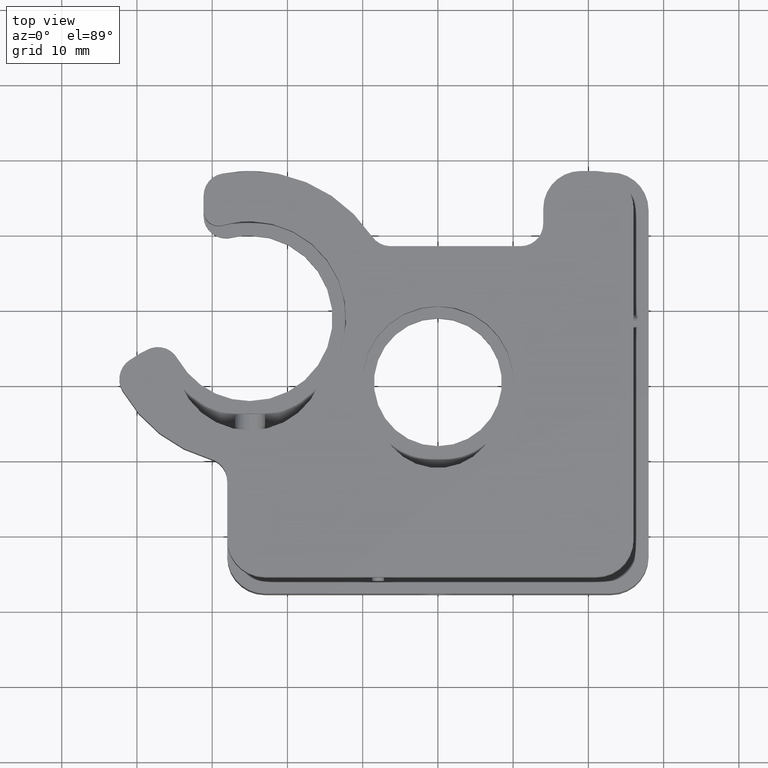
[diagram: clean part render]
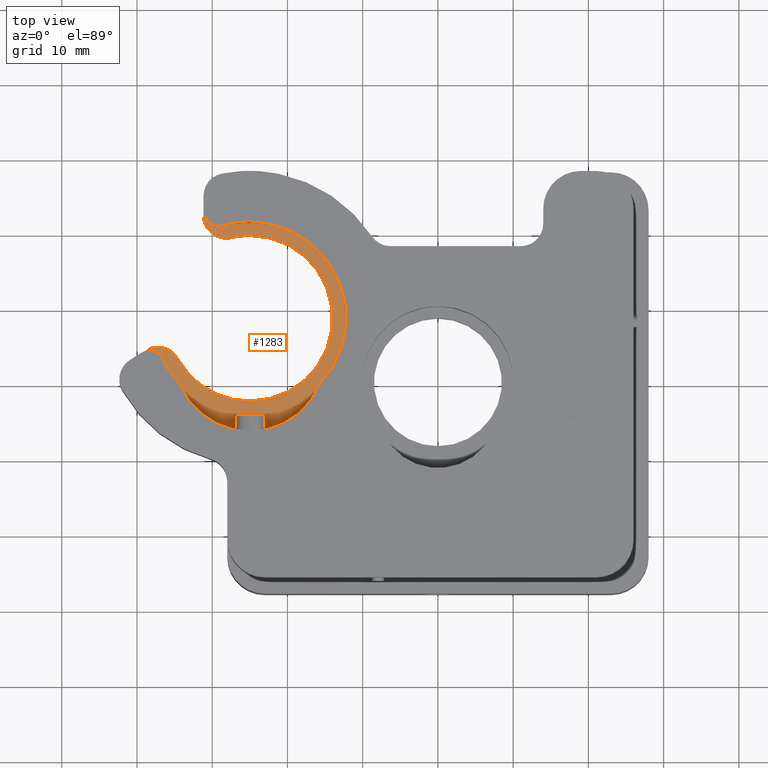
[diagram: same view with one face highlighted and labeled with its STEP entity id]
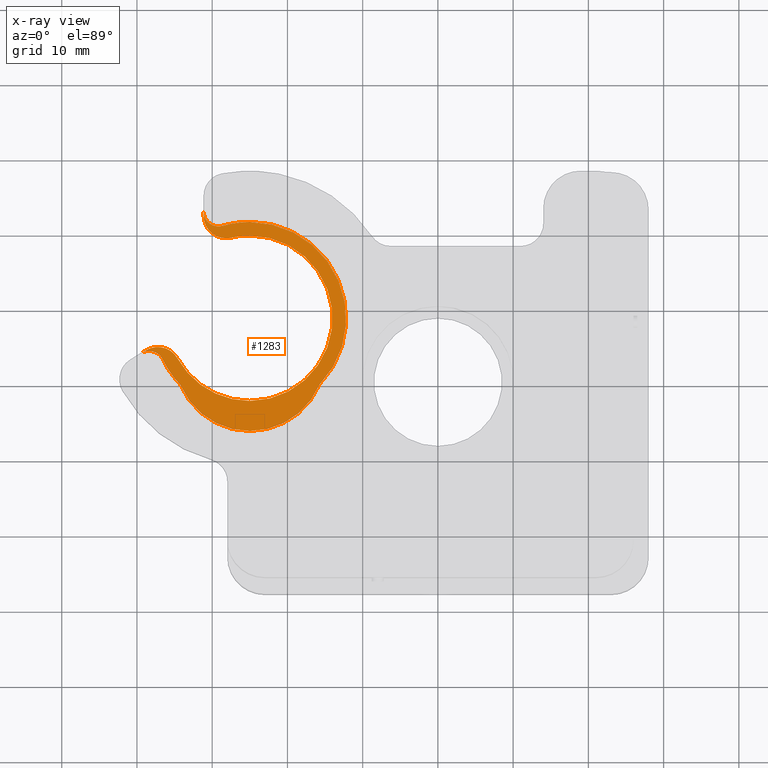
[diagram: x-ray of the same camera — body ghosted, the highlighted face saturated]
A machine part, top view. The second image highlights one B-rep face of the part: STEP entity #1283.
The next image is the same camera in x-ray: the body ghosted, the highlighted face saturated — about 0% of this face is hidden behind the body in this view.
In plain terms, the highlighted planar face has unit normal (-0, 0, 1).
Its self-contained STEP definition (entity closure, byte-faithful):
#75 = DIRECTION ( 'NONE',  ( 0.0000000000000000000, -0.0000000000000000000, -1.000000000000000000 ) ) ;
#202 = VERTEX_POINT ( 'NONE', #9729 ) ;
#343 = DIRECTION ( 'NONE',  ( -0.0000000000000000000, 0.0000000000000000000, 1.000000000000000000 ) ) ;
#470 = LINE ( 'NONE', #6014, #4370 ) ;
#837 = CARTESIAN_POINT ( 'NONE',  ( -25.00000000000000000, 6.000000000000005300, 3.000000000000000000 ) ) ;
#916 = DIRECTION ( 'NONE',  ( -0.0000000000000000000, 0.0000000000000000000, 1.000000000000000000 ) ) ;
#928 = VERTEX_POINT ( 'NONE', #12143 ) ;
#1068 = DIRECTION ( 'NONE',  ( -0.0000000000000000000, 0.0000000000000000000, 1.000000000000000000 ) ) ;
#1073 = AXIS2_PLACEMENT_3D ( 'NONE', #19945, #10563, #6027 ) ;
#1283 = ADVANCED_FACE ( 'NONE', ( #16189 ), #8588, .T. ) ;
#1427 = EDGE_CURVE ( 'NONE', #18922, #8894, #12517, .T. ) ;
#1872 = ORIENTED_EDGE ( 'NONE', *, *, #16642, .T. ) ;
#1947 = DIRECTION ( 'NONE',  ( 3.154042683594195100E-016, 1.000000000000000000, 0.0000000000000000000 ) ) ;
#2172 = DIRECTION ( 'NONE',  ( -0.0000000000000000000, 0.0000000000000000000, 1.000000000000000000 ) ) ;
#2177 = ORIENTED_EDGE ( 'NONE', *, *, #14813, .F. ) ;
#2343 = ORIENTED_EDGE ( 'NONE', *, *, #17942, .T. ) ;
#2905 = CIRCLE ( 'NONE', #10248, 2.000000000000000000 ) ;
#2924 = AXIS2_PLACEMENT_3D ( 'NONE', #16878, #15539, #7558 ) ;
#3008 = CARTESIAN_POINT ( 'NONE',  ( -37.22651217641400500, 1.680000000000008400, 3.000000000000000000 ) ) ;
#3035 = AXIS2_PLACEMENT_3D ( 'NONE', #12772, #18821, #7958 ) ;
#3147 = CARTESIAN_POINT ( 'NONE',  ( -34.21490878956487300, -0.3839999999999896300, 3.000000000000000000 ) ) ;
#3330 = VERTEX_POINT ( 'NONE', #5062 ) ;
#3784 = DIRECTION ( 'NONE',  ( 3.469446951953614700E-016, 1.000000000000000000, 0.0000000000000000000 ) ) ;
#3932 = VERTEX_POINT ( 'NONE', #11384 ) ;
#3955 = AXIS2_PLACEMENT_3D ( 'NONE', #3008, #75, #4650 ) ;
#4242 = CARTESIAN_POINT ( 'NONE',  ( -38.83442340807732800, 4.212710301453957300, 3.000000000000000000 ) ) ;
#4370 = VECTOR ( 'NONE', #17041, 1000.000000000000000 ) ;
#4385 = ORIENTED_EDGE ( 'NONE', *, *, #11531, .F. ) ;
#4650 = DIRECTION ( 'NONE',  ( 4.625929269271487700E-015, 1.000000000000000000, 0.0000000000000000000 ) ) ;
#5062 = CARTESIAN_POINT ( 'NONE',  ( -25.00000000000000000, -2.499999999999993300, 3.000000000000000000 ) ) ;
#5099 = ORIENTED_EDGE ( 'NONE', *, *, #19231, .T. ) ;
#5167 = CIRCLE ( 'NONE', #2924, 2.999999999999999100 ) ;
#5310 = CARTESIAN_POINT ( 'NONE',  ( -34.60654528146815100, 3.141428571428583000, 3.000000000000000000 ) ) ;
#5651 = CIRCLE ( 'NONE', #16591, 2.000000000000000000 ) ;
#5738 = ORIENTED_EDGE ( 'NONE', *, *, #11491, .F. ) ;
#5883 = DIRECTION ( 'NONE',  ( 2.710505431213761100E-016, 1.000000000000000000, 0.0000000000000000000 ) ) ;
#6014 = CARTESIAN_POINT ( 'NONE',  ( -38.83442340807732800, 4.212710301453957300, 3.000000000000000000 ) ) ;
#6027 = DIRECTION ( 'NONE',  ( 2.710505431213761100E-016, 1.000000000000000000, 0.0000000000000000000 ) ) ;
#6338 = DIRECTION ( 'NONE',  ( 0.0000000000000000000, -0.0000000000000000000, -1.000000000000000000 ) ) ;
#6362 = DIRECTION ( 'NONE',  ( -0.0000000000000000000, 0.0000000000000000000, 1.000000000000000000 ) ) ;
#6443 = EDGE_LOOP ( 'NONE', ( #7969, #4385, #13613, #1872, #19120, #2343, #5099, #8001, #7219, #11844, #17544, #13284, #5738, #2177, #9575 ) ) ;
#6966 = DIRECTION ( 'NONE',  ( 0.0000000000000000000, -0.0000000000000000000, -1.000000000000000000 ) ) ;
#7095 = AXIS2_PLACEMENT_3D ( 'NONE', #12184, #18128, #8803 ) ;
#7127 = VERTEX_POINT ( 'NONE', #9338 ) ;
#7219 = ORIENTED_EDGE ( 'NONE', *, *, #19676, .T. ) ;
#7426 = VERTEX_POINT ( 'NONE', #5310 ) ;
#7558 = DIRECTION ( 'NONE',  ( 0.0000000000000000000, 1.000000000000000000, 0.0000000000000000000 ) ) ;
#7633 = AXIS2_PLACEMENT_3D ( 'NONE', #17497, #343, #17570 ) ;
#7755 = AXIS2_PLACEMENT_3D ( 'NONE', #837, #916, #11703 ) ;
#7958 = DIRECTION ( 'NONE',  ( 3.154042683594195100E-016, 1.000000000000000000, 0.0000000000000000000 ) ) ;
#7969 = ORIENTED_EDGE ( 'NONE', *, *, #13109, .F. ) ;
#8001 = ORIENTED_EDGE ( 'NONE', *, *, #16042, .T. ) ;
#8062 = CARTESIAN_POINT ( 'NONE',  ( -38.36468677339463800, 2.141922660972867700, 3.000000000000000000 ) ) ;
#8069 = CARTESIAN_POINT ( 'NONE',  ( -25.00000000000000000, 3.500000000000006200, 3.000000000000000000 ) ) ;
#8124 = DIRECTION ( 'NONE',  ( 3.469446951953614200E-015, 1.000000000000000000, 0.0000000000000000000 ) ) ;
#8547 = CARTESIAN_POINT ( 'NONE',  ( -38.36468677339463800, 2.141922660972867700, 3.000000000000000000 ) ) ;
#8579 = CIRCLE ( 'NONE', #3955, 2.999999999999998700 ) ;
#8588 = PLANE ( 'NONE',  #7755 ) ;
#8803 = DIRECTION ( 'NONE',  ( 0.0000000000000000000, 1.000000000000000000, 0.0000000000000000000 ) ) ;
#8894 = VERTEX_POINT ( 'NONE', #16050 ) ;
#9338 = CARTESIAN_POINT ( 'NONE',  ( -36.55864802023319300, 3.001122301381937300, 3.000000000000000000 ) ) ;
#9402 = AXIS2_PLACEMENT_3D ( 'NONE', #8069, #2172, #3784 ) ;
#9503 = CIRCLE ( 'NONE', #3035, 10.99999999999999800 ) ;
#9575 = ORIENTED_EDGE ( 'NONE', *, *, #19832, .F. ) ;
#9729 = CARTESIAN_POINT ( 'NONE',  ( -38.36468677339463800, 4.141922660972867700, 3.000000000000000000 ) ) ;
#9922 = CARTESIAN_POINT ( 'NONE',  ( -27.47499999999999400, 19.21794639844779700, 3.000000000000000000 ) ) ;
#10000 = VERTEX_POINT ( 'NONE', #9922 ) ;
#10248 = AXIS2_PLACEMENT_3D ( 'NONE', #8062, #11044, #8124 ) ;
#10401 = VERTEX_POINT ( 'NONE', #13923 ) ;
#10563 = DIRECTION ( 'NONE',  ( -0.0000000000000000000, 0.0000000000000000000, 1.000000000000000000 ) ) ;
#10724 = EDGE_CURVE ( 'NONE', #8894, #3932, #13468, .T. ) ;
#11044 = DIRECTION ( 'NONE',  ( 0.0000000000000000000, -0.0000000000000000000, -1.000000000000000000 ) ) ;
#11067 = CIRCLE ( 'NONE', #14408, 10.99999999999999800 ) ;
#11208 = AXIS2_PLACEMENT_3D ( 'NONE', #15846, #6362, #14247 ) ;
#11384 = CARTESIAN_POINT ( 'NONE',  ( -31.14999999999999500, 22.70624862516492800, 3.000000000000000000 ) ) ;
#11491 = EDGE_CURVE ( 'NONE', #10000, #18922, #5167, .T. ) ;
#11531 = EDGE_CURVE ( 'NONE', #14577, #7426, #8579, .T. ) ;
#11703 = DIRECTION ( 'NONE',  ( 2.220446049250312600E-016, 1.000000000000000000, 0.0000000000000000000 ) ) ;
#11726 = CARTESIAN_POINT ( 'NONE',  ( -31.14999999999998400, 24.69652740558914400, 3.000000000000000000 ) ) ;
#11752 = EDGE_CURVE ( 'NONE', #202, #7127, #5651, .T. ) ;
#11844 = ORIENTED_EDGE ( 'NONE', *, *, #15030, .T. ) ;
#11953 = CARTESIAN_POINT ( 'NONE',  ( -24.99999999999999600, 19.50000000000000400, 3.000000000000000000 ) ) ;
#12143 = CARTESIAN_POINT ( 'NONE',  ( -15.78509121043512800, -0.3839999999999989000, 3.000000000000000000 ) ) ;
#12184 = CARTESIAN_POINT ( 'NONE',  ( -28.14999999999999500, 22.14102268893356000, 3.000000000000000000 ) ) ;
#12517 = CIRCLE ( 'NONE', #7095, 2.999999999999999100 ) ;
#12525 = CARTESIAN_POINT ( 'NONE',  ( -29.14999999999999100, 22.70624862516492100, 3.000000000000000000 ) ) ;
#12579 = AXIS2_PLACEMENT_3D ( 'NONE', #12525, #6338, #15816 ) ;
#12659 = VERTEX_POINT ( 'NONE', #14912 ) ;
#12673 = DIRECTION ( 'NONE',  ( -0.0000000000000000000, 0.0000000000000000000, 1.000000000000000000 ) ) ;
#12772 = CARTESIAN_POINT ( 'NONE',  ( -24.99999999999999600, 8.500000000000005300, 3.000000000000000000 ) ) ;
#12921 = CIRCLE ( 'NONE', #12579, 1.999999999999998200 ) ;
#12966 = VECTOR ( 'NONE', #13370, 1000.000000000000000 ) ;
#13092 = VERTEX_POINT ( 'NONE', #3147 ) ;
#13109 = EDGE_CURVE ( 'NONE', #7426, #3330, #9503, .T. ) ;
#13284 = ORIENTED_EDGE ( 'NONE', *, *, #1427, .F. ) ;
#13370 = DIRECTION ( 'NONE',  ( 2.937317974871390600E-015, 1.000000000000000000, 0.0000000000000000000 ) ) ;
#13468 = LINE ( 'NONE', #11726, #12966 ) ;
#13582 = CIRCLE ( 'NONE', #11208, 12.80000000000000100 ) ;
#13613 = ORIENTED_EDGE ( 'NONE', *, *, #16218, .F. ) ;
#13923 = CARTESIAN_POINT ( 'NONE',  ( -24.99999999999999300, 21.30000000000000800, 3.000000000000000000 ) ) ;
#14247 = DIRECTION ( 'NONE',  ( 2.710505431213761100E-016, 1.000000000000000000, 0.0000000000000000000 ) ) ;
#14408 = AXIS2_PLACEMENT_3D ( 'NONE', #18904, #12673, #1947 ) ;
#14577 = VERTEX_POINT ( 'NONE', #4242 ) ;
#14583 = AXIS2_PLACEMENT_3D ( 'NONE', #16514, #1068, #5883 ) ;
#14813 = EDGE_CURVE ( 'NONE', #17540, #10000, #16596, .T. ) ;
#14847 = CIRCLE ( 'NONE', #14583, 12.80000000000000100 ) ;
#14912 = CARTESIAN_POINT ( 'NONE',  ( -28.58918918918918100, 20.78648529743993500, 3.000000000000000000 ) ) ;
#14949 = VERTEX_POINT ( 'NONE', #19356 ) ;
#15030 = EDGE_CURVE ( 'NONE', #12659, #3932, #12921, .T. ) ;
#15539 = DIRECTION ( 'NONE',  ( 0.0000000000000000000, -0.0000000000000000000, -1.000000000000000000 ) ) ;
#15816 = DIRECTION ( 'NONE',  ( 1.734723475976808700E-015, 1.000000000000000000, 0.0000000000000000000 ) ) ;
#15846 = CARTESIAN_POINT ( 'NONE',  ( -24.99999999999999600, 8.500000000000005300, 3.000000000000000000 ) ) ;
#16042 = EDGE_CURVE ( 'NONE', #928, #10401, #14847, .T. ) ;
#16050 = CARTESIAN_POINT ( 'NONE',  ( -31.14999999999999500, 22.14102268893356000, 3.000000000000000000 ) ) ;
#16189 = FACE_OUTER_BOUND ( 'NONE', #6443, .T. ) ;
#16218 = EDGE_CURVE ( 'NONE', #14949, #14577, #470, .T. ) ;
#16514 = CARTESIAN_POINT ( 'NONE',  ( -24.99999999999999600, 8.500000000000005300, 3.000000000000000000 ) ) ;
#16591 = AXIS2_PLACEMENT_3D ( 'NONE', #8547, #6966, #19590 ) ;
#16596 = CIRCLE ( 'NONE', #7633, 10.99999999999999800 ) ;
#16642 = EDGE_CURVE ( 'NONE', #14949, #202, #2905, .T. ) ;
#16878 = CARTESIAN_POINT ( 'NONE',  ( -28.14999999999999500, 22.14102268893356000, 3.000000000000000000 ) ) ;
#17041 = DIRECTION ( 'NONE',  ( 0.8442367671513162400, 0.5359704105544392800, 0.0000000000000000000 ) ) ;
#17497 = CARTESIAN_POINT ( 'NONE',  ( -24.99999999999999600, 8.500000000000005300, 3.000000000000000000 ) ) ;
#17540 = VERTEX_POINT ( 'NONE', #11953 ) ;
#17544 = ORIENTED_EDGE ( 'NONE', *, *, #10724, .F. ) ;
#17570 = DIRECTION ( 'NONE',  ( 3.154042683594195100E-016, 1.000000000000000000, 0.0000000000000000000 ) ) ;
#17684 = CIRCLE ( 'NONE', #9402, 9.999999999999998200 ) ;
#17942 = EDGE_CURVE ( 'NONE', #7127, #13092, #13582, .T. ) ;
#18005 = CARTESIAN_POINT ( 'NONE',  ( -28.14999999999999500, 19.14102268893356000, 3.000000000000000000 ) ) ;
#18128 = DIRECTION ( 'NONE',  ( 0.0000000000000000000, -0.0000000000000000000, -1.000000000000000000 ) ) ;
#18821 = DIRECTION ( 'NONE',  ( -0.0000000000000000000, 0.0000000000000000000, 1.000000000000000000 ) ) ;
#18904 = CARTESIAN_POINT ( 'NONE',  ( -24.99999999999999600, 8.500000000000005300, 3.000000000000000000 ) ) ;
#18922 = VERTEX_POINT ( 'NONE', #18005 ) ;
#19120 = ORIENTED_EDGE ( 'NONE', *, *, #11752, .T. ) ;
#19231 = EDGE_CURVE ( 'NONE', #13092, #928, #17684, .T. ) ;
#19356 = CARTESIAN_POINT ( 'NONE',  ( -39.43662759450352000, 3.830396195275499200, 3.000000000000000000 ) ) ;
#19590 = DIRECTION ( 'NONE',  ( 0.0000000000000000000, 1.000000000000000000, 0.0000000000000000000 ) ) ;
#19644 = CIRCLE ( 'NONE', #1073, 12.80000000000000100 ) ;
#19676 = EDGE_CURVE ( 'NONE', #10401, #12659, #19644, .T. ) ;
#19832 = EDGE_CURVE ( 'NONE', #3330, #17540, #11067, .T. ) ;
#19945 = CARTESIAN_POINT ( 'NONE',  ( -24.99999999999999600, 8.500000000000005300, 3.000000000000000000 ) ) ;